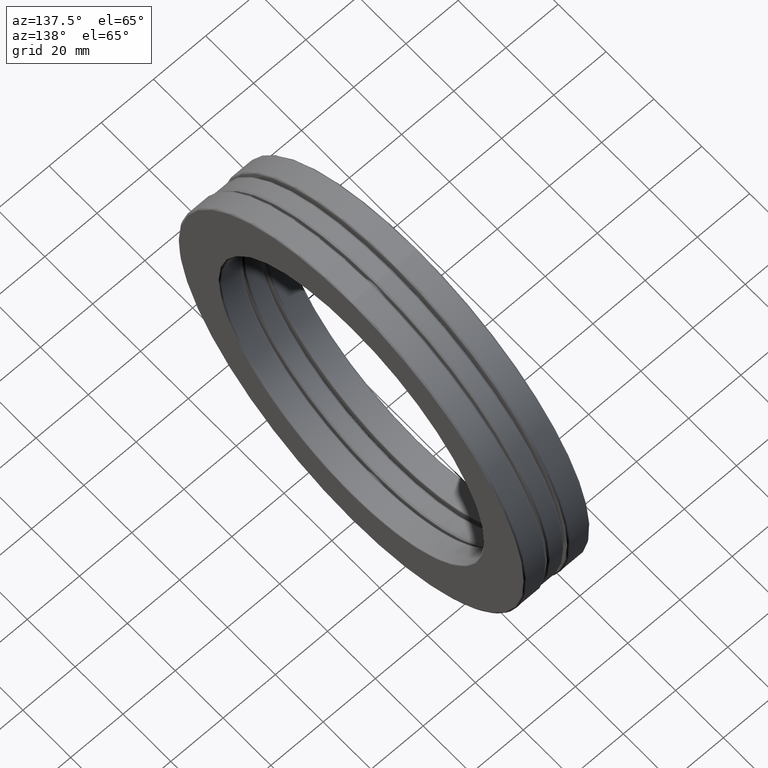
[diagram: clean part render]
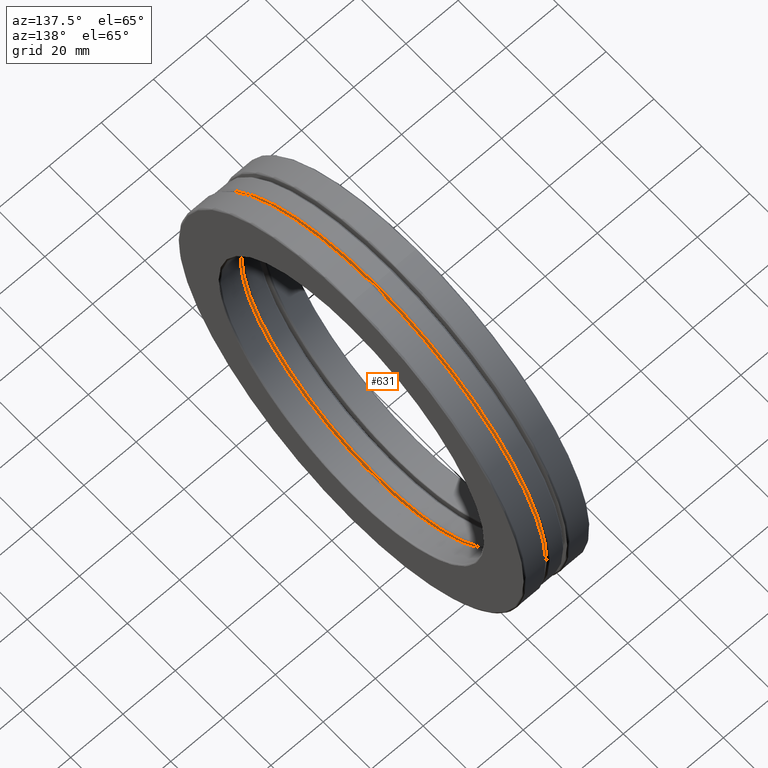
[diagram: same view with one face highlighted and labeled with its STEP entity id]
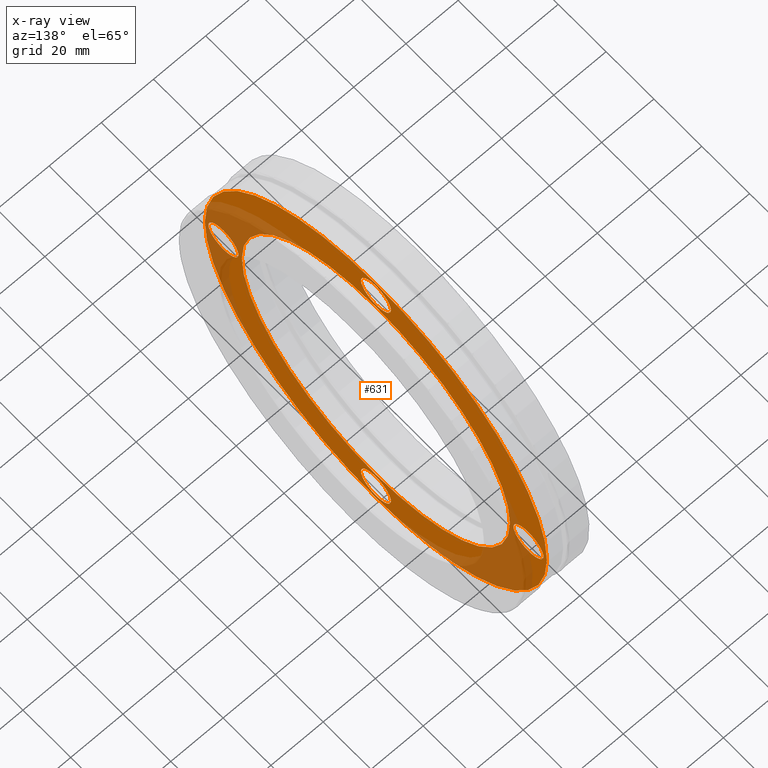
[diagram: x-ray of the same camera — body ghosted, the highlighted face saturated]
A machine part, auxiliary view. The second image highlights one B-rep face of the part: STEP entity #631.
The next image is the same camera in x-ray: the body ghosted, the highlighted face saturated — about 28% of this face is hidden behind the body in this view.
In plain terms, the highlighted planar face has unit normal (1, 0, 0).
Its self-contained STEP definition (entity closure, byte-faithful):
#5 = DIRECTION ( 'NONE',  ( 1.000000000000000000, 0.0000000000000000000, 0.0000000000000000000 ) ) ;
#44 = VERTEX_POINT ( 'NONE', #536 ) ;
#63 = CIRCLE ( 'NONE', #601, 0.2470000000000006600 ) ;
#65 = DIRECTION ( 'NONE',  ( 0.0000000000000000000, -1.000000000000000000, 4.424045333869240300E-015 ) ) ;
#67 = CARTESIAN_POINT ( 'NONE',  ( 0.1230000000000000300, 2.629085448148879700E-014, 2.510000000000000200 ) ) ;
#73 = CARTESIAN_POINT ( 'NONE',  ( 0.1230000000000000300, -8.763618160496265000E-015, -2.510000000000000200 ) ) ;
#75 = DIRECTION ( 'NONE',  ( 0.0000000000000000000, 0.0000000000000000000, 1.000000000000000000 ) ) ;
#88 = AXIS2_PLACEMENT_3D ( 'NONE', #612, #558, #745 ) ;
#92 = DIRECTION ( 'NONE',  ( 1.000000000000000000, -0.0000000000000000000, 0.0000000000000000000 ) ) ;
#94 = VERTEX_POINT ( 'NONE', #347 ) ;
#122 = EDGE_CURVE ( 'NONE', #94, #94, #437, .T. ) ;
#123 = DIRECTION ( 'NONE',  ( 0.0000000000000000000, 1.000000000000000000, -1.106011333467310100E-014 ) ) ;
#125 = DIRECTION ( 'NONE',  ( 1.000000000000000000, 0.0000000000000000000, 0.0000000000000000000 ) ) ;
#141 = CARTESIAN_POINT ( 'NONE',  ( 0.1230000000000000300, -2.510000000000000200, 0.0000000000000000000 ) ) ;
#157 = AXIS2_PLACEMENT_3D ( 'NONE', #690, #620, #501 ) ;
#168 = FACE_BOUND ( 'NONE', #658, .T. ) ;
#182 = DIRECTION ( 'NONE',  ( 0.0000000000000000000, 0.0000000000000000000, 1.000000000000000000 ) ) ;
#200 = FACE_BOUND ( 'NONE', #670, .T. ) ;
#218 = VERTEX_POINT ( 'NONE', #360 ) ;
#226 = ORIENTED_EDGE ( 'NONE', *, *, #122, .F. ) ;
#232 = AXIS2_PLACEMENT_3D ( 'NONE', #141, #5, #75 ) ;
#234 = ORIENTED_EDGE ( 'NONE', *, *, #508, .F. ) ;
#236 = ORIENTED_EDGE ( 'NONE', *, *, #593, .F. ) ;
#238 = CARTESIAN_POINT ( 'NONE',  ( 0.1229999999999999700, 0.0000000000000000000, 0.0000000000000000000 ) ) ;
#255 = DIRECTION ( 'NONE',  ( 1.000000000000000000, 0.0000000000000000000, 0.0000000000000000000 ) ) ;
#272 = AXIS2_PLACEMENT_3D ( 'NONE', #67, #125, #123 ) ;
#298 = CIRCLE ( 'NONE', #272, 0.2470000000000006600 ) ;
#300 = VERTEX_POINT ( 'NONE', #724 ) ;
#320 = VERTEX_POINT ( 'NONE', #418 ) ;
#339 = FACE_BOUND ( 'NONE', #794, .T. ) ;
#347 = CARTESIAN_POINT ( 'NONE',  ( 0.1230000000000000300, -2.510000000000000200, 0.2470000000000006600 ) ) ;
#353 = DIRECTION ( 'NONE',  ( 0.0000000000000000000, 0.0000000000000000000, -1.000000000000000000 ) ) ;
#360 = CARTESIAN_POINT ( 'NONE',  ( 0.1230000000000000300, 2.510000000000000200, -0.2470000000000006600 ) ) ;
#382 = VERTEX_POINT ( 'NONE', #406 ) ;
#383 = PLANE ( 'NONE',  #157 ) ;
#395 = EDGE_LOOP ( 'NONE', ( #476 ) ) ;
#406 = CARTESIAN_POINT ( 'NONE',  ( 0.1229999999999999700, 0.0000000000000000000, 2.814500000000000200 ) ) ;
#418 = CARTESIAN_POINT ( 'NONE',  ( 0.1230000000000000300, 0.2470000000000269800, 2.509999999999997600 ) ) ;
#433 = EDGE_CURVE ( 'NONE', #382, #382, #800, .T. ) ;
#437 = CIRCLE ( 'NONE', #232, 0.2470000000000006600 ) ;
#442 = FACE_BOUND ( 'NONE', #460, .T. ) ;
#450 = CIRCLE ( 'NONE', #702, 0.2470000000000006600 ) ;
#458 = EDGE_CURVE ( 'NONE', #300, #300, #748, .T. ) ;
#459 = FACE_BOUND ( 'NONE', #395, .T. ) ;
#460 = EDGE_LOOP ( 'NONE', ( #636 ) ) ;
#476 = ORIENTED_EDGE ( 'NONE', *, *, #787, .F. ) ;
#478 = CARTESIAN_POINT ( 'NONE',  ( 0.1230000000000000300, 2.510000000000000200, 0.0000000000000000000 ) ) ;
#479 = FACE_OUTER_BOUND ( 'NONE', #629, .T. ) ;
#492 = DIRECTION ( 'NONE',  ( -1.000000000000000000, -0.0000000000000000000, -0.0000000000000000000 ) ) ;
#501 = DIRECTION ( 'NONE',  ( 0.0000000000000000000, 0.0000000000000000000, -1.000000000000000000 ) ) ;
#508 = EDGE_CURVE ( 'NONE', #44, #44, #450, .T. ) ;
#536 = CARTESIAN_POINT ( 'NONE',  ( 0.1230000000000000300, -0.2470000000000094300, -2.509999999999999300 ) ) ;
#558 = DIRECTION ( 'NONE',  ( -1.000000000000000000, -0.0000000000000000000, -0.0000000000000000000 ) ) ;
#593 = EDGE_CURVE ( 'NONE', #320, #320, #298, .T. ) ;
#601 = AXIS2_PLACEMENT_3D ( 'NONE', #478, #92, #353 ) ;
#612 = CARTESIAN_POINT ( 'NONE',  ( 0.1230000000000000400, 0.0000000000000000000, 0.0000000000000000000 ) ) ;
#618 = AXIS2_PLACEMENT_3D ( 'NONE', #238, #492, #182 ) ;
#620 = DIRECTION ( 'NONE',  ( 1.000000000000000000, 0.0000000000000000000, 0.0000000000000000000 ) ) ;
#629 = EDGE_LOOP ( 'NONE', ( #652 ) ) ;
#631 = ADVANCED_FACE ( 'NONE', ( #339, #168, #200, #459, #442, #479 ), #383, .T. ) ;
#636 = ORIENTED_EDGE ( 'NONE', *, *, #458, .T. ) ;
#652 = ORIENTED_EDGE ( 'NONE', *, *, #433, .F. ) ;
#658 = EDGE_LOOP ( 'NONE', ( #226 ) ) ;
#670 = EDGE_LOOP ( 'NONE', ( #236 ) ) ;
#690 = CARTESIAN_POINT ( 'NONE',  ( 0.1230000000000000300, 1.379381376111267800E-017, 0.0000000000000000000 ) ) ;
#702 = AXIS2_PLACEMENT_3D ( 'NONE', #73, #255, #65 ) ;
#724 = CARTESIAN_POINT ( 'NONE',  ( 0.1230000000000000400, 0.0000000000000000000, 2.205499999999999800 ) ) ;
#745 = DIRECTION ( 'NONE',  ( 0.0000000000000000000, 0.0000000000000000000, 1.000000000000000000 ) ) ;
#748 = CIRCLE ( 'NONE', #88, 2.205499999999999800 ) ;
#787 = EDGE_CURVE ( 'NONE', #218, #218, #63, .T. ) ;
#794 = EDGE_LOOP ( 'NONE', ( #234 ) ) ;
#800 = CIRCLE ( 'NONE', #618, 2.814500000000000200 ) ;